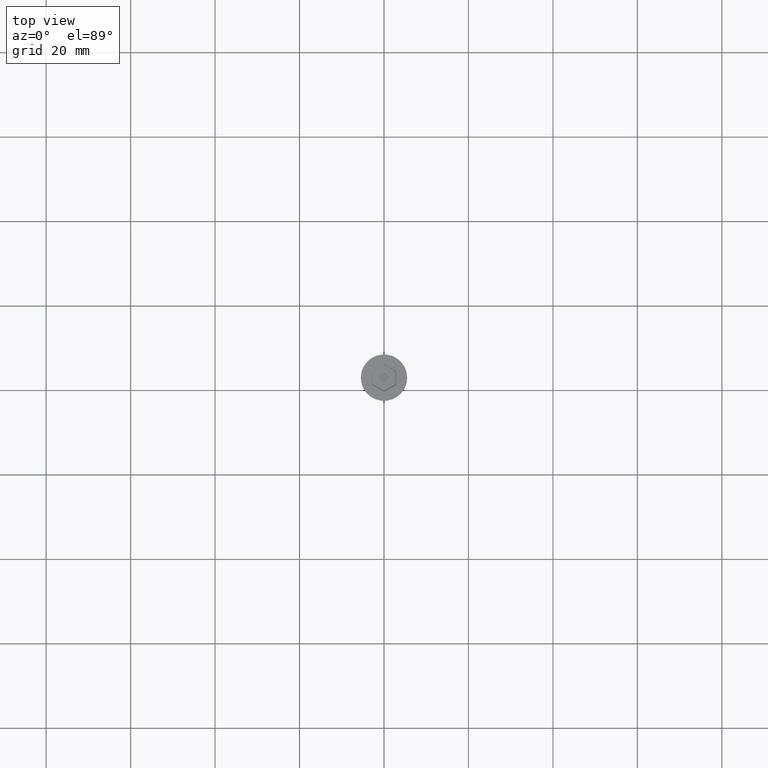
[diagram: clean part render]
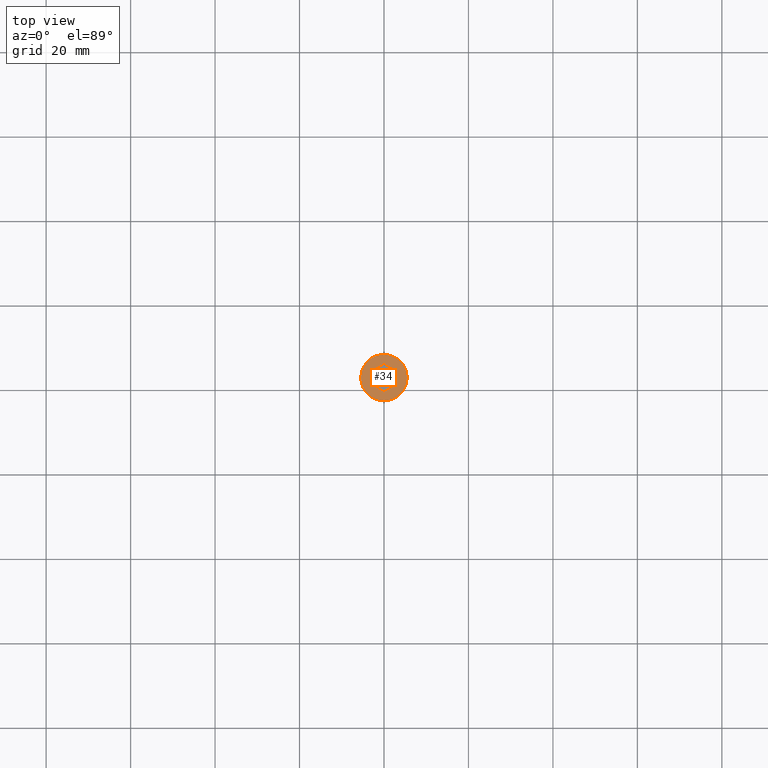
[diagram: same view with one face highlighted and labeled with its STEP entity id]
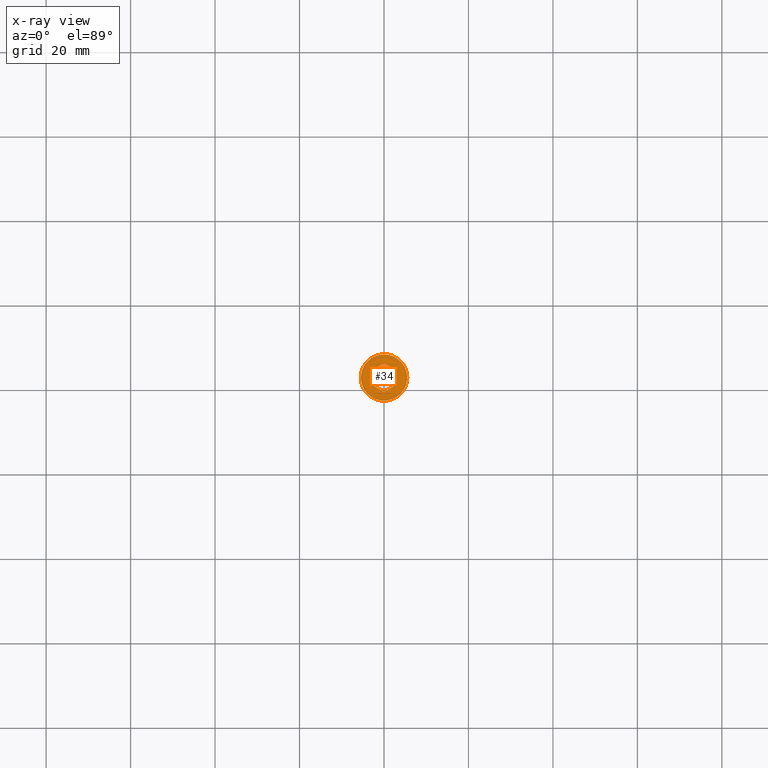
[diagram: x-ray of the same camera — body ghosted, the highlighted face saturated]
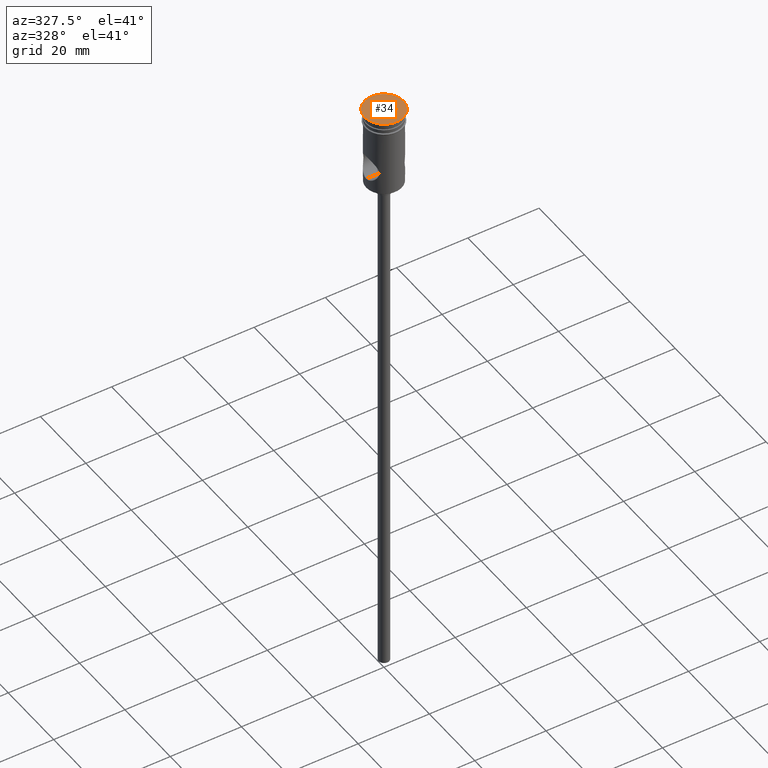
[diagram: same view with one face highlighted and labeled with its STEP entity id]
A machine part, top view. The second image highlights one B-rep face of the part: STEP entity #34.
The next image is the same camera in x-ray: the body ghosted, the highlighted face saturated — about 0% of this face is hidden behind the body in this view.
A second angle (auxiliary view) of the same face is appended — the face is thin or edge-on in the first view.
In plain terms, the highlighted planar face has unit normal (0, -0, 1).
Its self-contained STEP definition (entity closure, byte-faithful):
#7 = DIRECTION ( 'NONE',  ( -0.8660254037844385966, 0.5000000000000001110, 0.000000000000000000 ) ) ;
#13 = LINE ( 'NONE', #827, #1345 ) ;
#24 = LINE ( 'NONE', #375, #1350 ) ;
#34 = ADVANCED_FACE ( 'NONE', ( #830, #1272 ), #809, .T. ) ;
#40 = VECTOR ( 'NONE', #1130, 1000.000000000000000 ) ;
#57 = ORIENTED_EDGE ( 'NONE', *, *, #1080, .T. ) ;
#66 = VERTEX_POINT ( 'NONE', #128 ) ;
#109 = AXIS2_PLACEMENT_3D ( 'NONE', #1055, #609, #260 ) ;
#128 = CARTESIAN_POINT ( 'NONE',  ( 2.899999999999992806, 1.674315780649911378, 0.000000000000000000 ) ) ;
#149 = DIRECTION ( 'NONE',  ( -1.391032035867740017E-16, -1.000000000000000000, 0.000000000000000000 ) ) ;
#163 = LINE ( 'NONE', #746, #1258 ) ;
#164 = VERTEX_POINT ( 'NONE', #1068 ) ;
#175 = DIRECTION ( 'NONE',  ( -0.8660254037844387076, -0.4999999999999998890, 0.000000000000000000 ) ) ;
#178 = CIRCLE ( 'NONE', #932, 5.500000000000000000 ) ;
#195 = EDGE_CURVE ( 'NONE', #1193, #590, #163, .T. ) ;
#215 = CARTESIAN_POINT ( 'NONE',  ( 2.799999999999996270, 1.732050807568872086, 0.000000000000000000 ) ) ;
#260 = DIRECTION ( 'NONE',  ( 1.000000000000000000, 0.000000000000000000, 0.000000000000000000 ) ) ;
#267 = EDGE_LOOP ( 'NONE', ( #1131, #1392 ) ) ;
#290 = ORIENTED_EDGE ( 'NONE', *, *, #968, .T. ) ;
#328 = CARTESIAN_POINT ( 'NONE',  ( -2.799999999999997158, -1.732050807568871864, 0.000000000000000000 ) ) ;
#346 = VERTEX_POINT ( 'NONE', #1319 ) ;
#364 = CARTESIAN_POINT ( 'NONE',  ( 0.000000000000000000, 0.000000000000000000, 0.000000000000000000 ) ) ;
#366 = CARTESIAN_POINT ( 'NONE',  ( -4.552601062339046804E-16, -3.348631561299821868, 0.000000000000000000 ) ) ;
#375 = CARTESIAN_POINT ( 'NONE',  ( -0.09999999999999764633, 3.290896534380861382, 0.000000000000000000 ) ) ;
#385 = VERTEX_POINT ( 'NONE', #1208 ) ;
#408 = EDGE_CURVE ( 'NONE', #759, #164, #13, .T. ) ;
#560 = LINE ( 'NONE', #888, #1122 ) ;
#564 = CARTESIAN_POINT ( 'NONE',  ( 0.000000000000000000, 0.000000000000000000, 0.000000000000000000 ) ) ;
#571 = VECTOR ( 'NONE', #7, 1000.000000000000114 ) ;
#583 = ORIENTED_EDGE ( 'NONE', *, *, #1049, .T. ) ;
#590 = VERTEX_POINT ( 'NONE', #366 ) ;
#609 = DIRECTION ( 'NONE',  ( 0.000000000000000000, -0.000000000000000000, 1.000000000000000000 ) ) ;
#614 = ORIENTED_EDGE ( 'NONE', *, *, #1188, .T. ) ;
#694 = DIRECTION ( 'NONE',  ( 0.000000000000000000, 1.000000000000000000, 0.000000000000000000 ) ) ;
#713 = DIRECTION ( 'NONE',  ( -0.000000000000000000, -0.000000000000000000, 1.000000000000000000 ) ) ;
#734 = LINE ( 'NONE', #215, #40 ) ;
#746 = CARTESIAN_POINT ( 'NONE',  ( 0.09999999999999654998, -3.290896534380861382, 0.000000000000000000 ) ) ;
#755 = AXIS2_PLACEMENT_3D ( 'NONE', #564, #997, #991 ) ;
#759 = VERTEX_POINT ( 'NONE', #1210 ) ;
#780 = VERTEX_POINT ( 'NONE', #983 ) ;
#809 = PLANE ( 'NONE',  #109 ) ;
#813 = CARTESIAN_POINT ( 'NONE',  ( 2.899999999999992362, -1.674315780649911822, 0.000000000000000000 ) ) ;
#827 = CARTESIAN_POINT ( 'NONE',  ( -2.899999999999994138, 1.558845726811988852, 0.000000000000000000 ) ) ;
#830 = FACE_BOUND ( 'NONE', #969, .T. ) ;
#837 = EDGE_CURVE ( 'NONE', #780, #346, #956, .T. ) ;
#888 = CARTESIAN_POINT ( 'NONE',  ( 2.899999999999992362, -1.558845726811989296, 0.000000000000000000 ) ) ;
#907 = EDGE_CURVE ( 'NONE', #346, #780, #178, .T. ) ;
#932 = AXIS2_PLACEMENT_3D ( 'NONE', #364, #713, #1153 ) ;
#956 = CIRCLE ( 'NONE', #755, 5.500000000000000000 ) ;
#968 = EDGE_CURVE ( 'NONE', #385, #66, #734, .T. ) ;
#969 = EDGE_LOOP ( 'NONE', ( #583, #1316, #614, #290, #57, #1245 ) ) ;
#983 = CARTESIAN_POINT ( 'NONE',  ( 5.500000000000000000, 0.000000000000000000, 0.000000000000000000 ) ) ;
#991 = DIRECTION ( 'NONE',  ( 1.000000000000000000, 0.000000000000000000, 0.000000000000000000 ) ) ;
#997 = DIRECTION ( 'NONE',  ( -0.000000000000000000, -0.000000000000000000, 1.000000000000000000 ) ) ;
#1017 = LINE ( 'NONE', #328, #571 ) ;
#1049 = EDGE_CURVE ( 'NONE', #590, #759, #1017, .T. ) ;
#1055 = CARTESIAN_POINT ( 'NONE',  ( 0.000000000000000000, 0.000000000000000000, 0.000000000000000000 ) ) ;
#1068 = CARTESIAN_POINT ( 'NONE',  ( -2.899999999999994138, 1.674315780649911600, 0.000000000000000000 ) ) ;
#1080 = EDGE_CURVE ( 'NONE', #66, #1193, #560, .T. ) ;
#1122 = VECTOR ( 'NONE', #149, 1000.000000000000000 ) ;
#1130 = DIRECTION ( 'NONE',  ( 0.8660254037844387076, -0.4999999999999998335, 0.000000000000000000 ) ) ;
#1131 = ORIENTED_EDGE ( 'NONE', *, *, #837, .T. ) ;
#1153 = DIRECTION ( 'NONE',  ( 1.000000000000000000, 0.000000000000000000, 0.000000000000000000 ) ) ;
#1188 = EDGE_CURVE ( 'NONE', #164, #385, #24, .T. ) ;
#1193 = VERTEX_POINT ( 'NONE', #813 ) ;
#1208 = CARTESIAN_POINT ( 'NONE',  ( -9.683804684061200344E-16, 3.348631561299821868, 0.000000000000000000 ) ) ;
#1210 = CARTESIAN_POINT ( 'NONE',  ( -2.899999999999994138, -1.674315780649910934, 0.000000000000000000 ) ) ;
#1245 = ORIENTED_EDGE ( 'NONE', *, *, #195, .T. ) ;
#1258 = VECTOR ( 'NONE', #175, 1000.000000000000000 ) ;
#1265 = DIRECTION ( 'NONE',  ( 0.8660254037844387076, 0.4999999999999998890, 0.000000000000000000 ) ) ;
#1272 = FACE_OUTER_BOUND ( 'NONE', #267, .T. ) ;
#1316 = ORIENTED_EDGE ( 'NONE', *, *, #408, .T. ) ;
#1319 = CARTESIAN_POINT ( 'NONE',  ( -5.500000000000000000, 6.735557395310442023E-16, 0.000000000000000000 ) ) ;
#1345 = VECTOR ( 'NONE', #694, 1000.000000000000000 ) ;
#1350 = VECTOR ( 'NONE', #1265, 1000.000000000000000 ) ;
#1392 = ORIENTED_EDGE ( 'NONE', *, *, #907, .T. ) ;